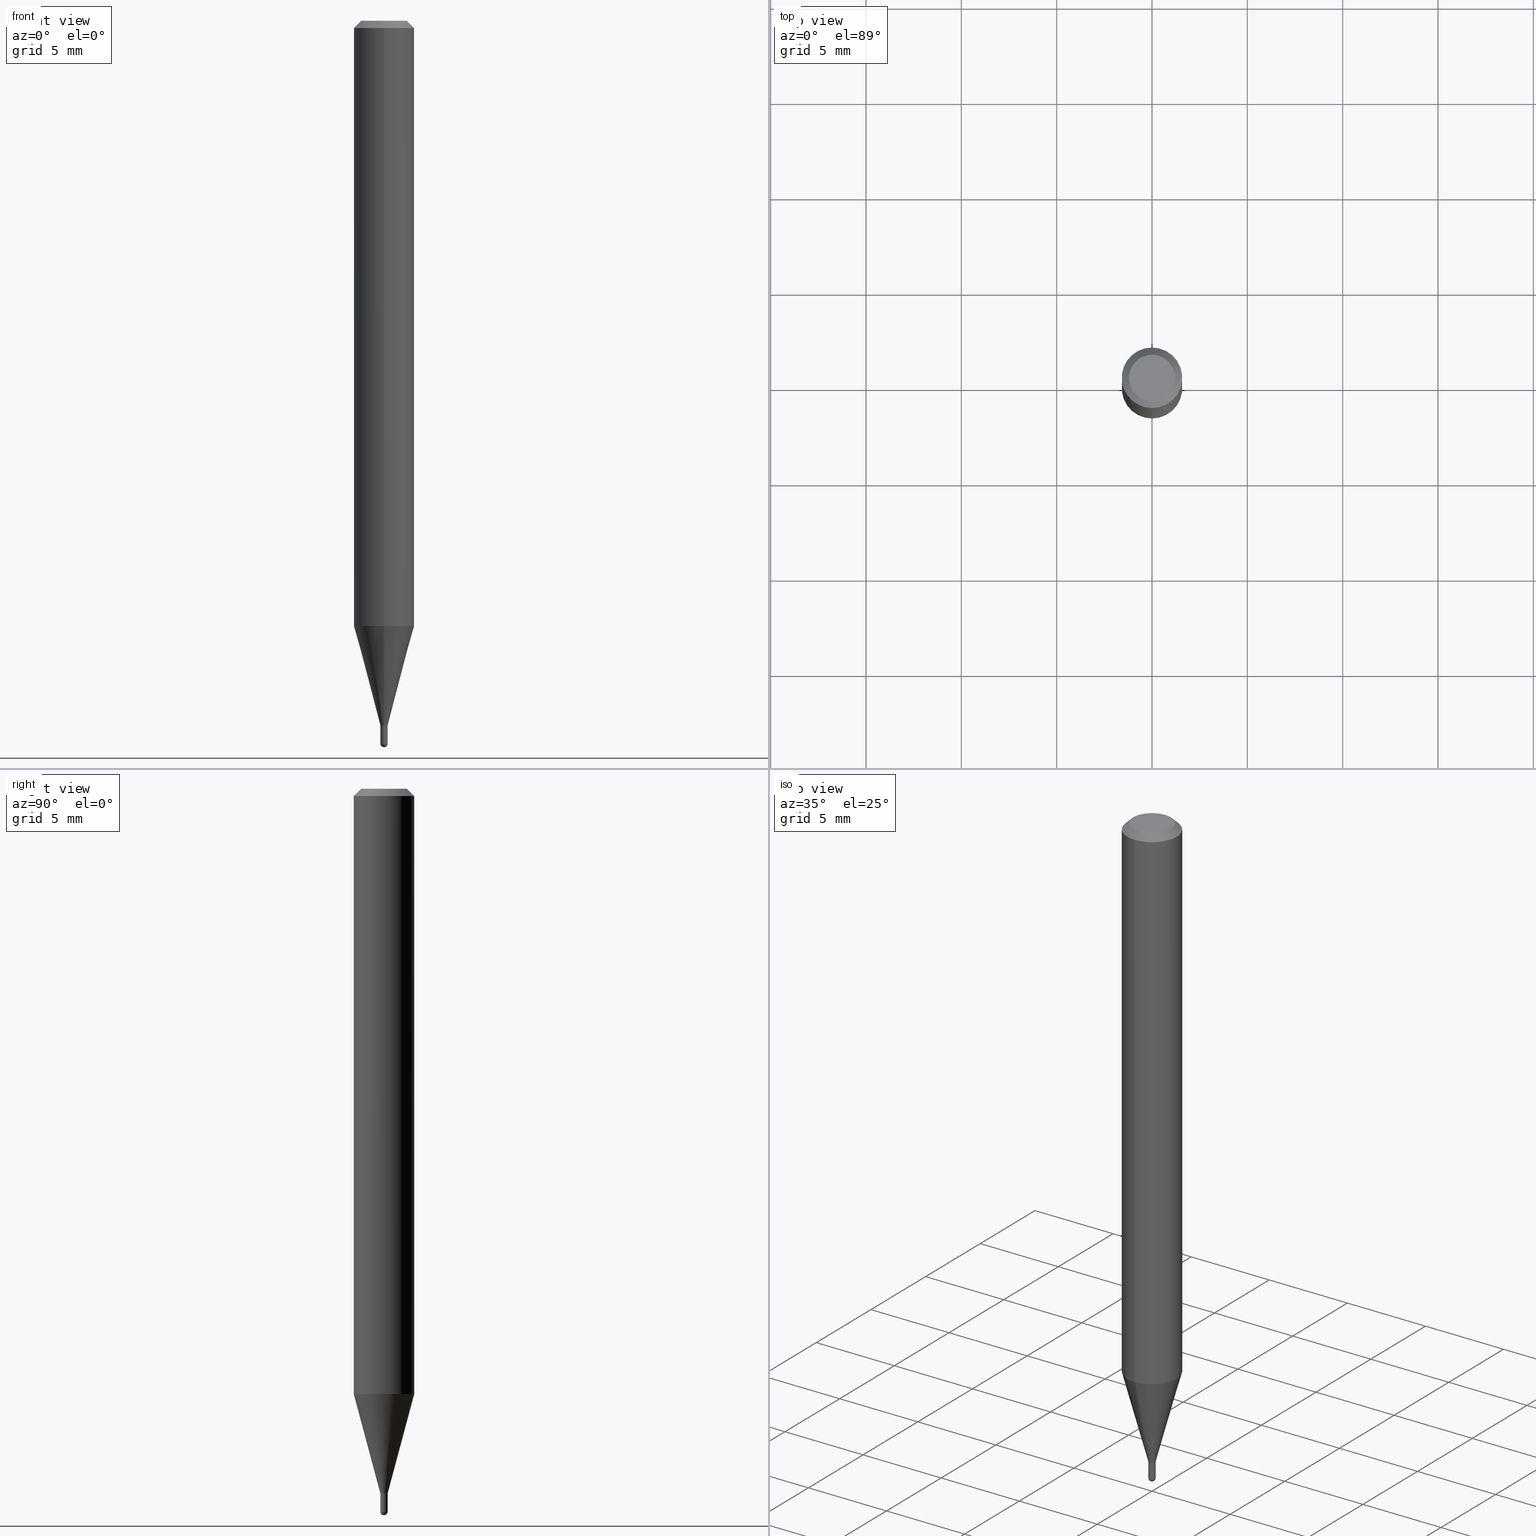
[diagram: canonical four-view strip — front | top / right | iso, engineering-drawing reading convention]
A machine part, canonical four-view strip (front | top / right | iso — engineering-drawing reading convention). The complete STEP part file that produces these views, byte-faithful:
ISO-10303-21;
HEADER;
FILE_DESCRIPTION (( 'STEP AP203' ),
    '1' );
FILE_NAME ('01438.STEP',
    '2024-03-07T20:52:54',
    ( '' ),
    ( '' ),
    'SwSTEP 2.0',
    'SolidWorks 2023',
    '' );
FILE_SCHEMA (( 'CONFIG_CONTROL_DESIGN' ));
ENDSEC;

DATA;
#1 = ADVANCED_FACE ( 'NONE', ( #479 ), #376, .T. ) ;
#2 = COORDINATED_UNIVERSAL_TIME_OFFSET ( 5, 0, .BEHIND. ) ;
#3 = PERSON_AND_ORGANIZATION ( #362, #62 ) ;
#4 = AXIS2_PLACEMENT_3D ( 'NONE', #68, #512, #146 ) ;
#5 = DIRECTION ( 'NONE',  ( 1.000000000000000000, -6.982962677686268288E-15, 0.000000000000000000 ) ) ;
#6 = ORIENTED_EDGE ( 'NONE', *, *, #439, .F. ) ;
#7 = PRODUCT ( '01438', '01438', '', ( #383 ) ) ;
#8 = ADVANCED_FACE ( 'NONE', ( #426 ), #38, .T. ) ;
#9 = APPLICATION_CONTEXT ( 'configuration controlled 3d designs of mechanical parts and assemblies' ) ;
#10 = LINE ( 'NONE', #262, #340 ) ;
#11 = DIRECTION ( 'NONE',  ( -4.851104656540964275E-15, -0.7071067811865500152, -0.7071067811865450192 ) ) ;
#12 = PLANE ( 'NONE',  #369 ) ;
#13 = DIRECTION ( 'NONE',  ( 2.445455298857690546E-29, -3.491500682104837791E-15, -1.000000000000000000 ) ) ;
#14 = LOCAL_TIME ( 15, 52, 54.00000000000000000, #428 ) ;
#15 = EDGE_LOOP ( 'NONE', ( #131, #122 ) ) ;
#16 = ADVANCED_FACE ( 'NONE', ( #112 ), #216, .T. ) ;
#17 = DIRECTION ( 'NONE',  ( 6.982962677686265922E-15, 1.000000000000000000, -3.483106191921935554E-15 ) ) ;
#18 = CARTESIAN_POINT ( 'NONE',  ( -5.237222008261278225E-17, -0.007500000000005276751, -1.455000000000000293 ) ) ;
#19 = CARTESIAN_POINT ( 'NONE',  ( 3.668182948286538113E-31, -5.237251023157260138E-17, -0.01500000000000000812 ) ) ;
#20 = DIRECTION ( 'NONE',  ( -6.982962677686265922E-15, -1.000000000000000000, 0.000000000000000000 ) ) ;
#21 = AXIS2_PLACEMENT_3D ( 'NONE', #413, #292, #317 ) ;
#22 = CONICAL_SURFACE ( 'NONE', #86, 0.006999999999999999278, 0.7853981633974739252 ) ;
#23 = EDGE_CURVE ( 'NONE', #172, #339, #61, .T. ) ;
#24 = CARTESIAN_POINT ( 'NONE',  ( 3.649220818514431555E-29, -5.211954383322755316E-15, -1.492499999999999938 ) ) ;
#25 = CARTESIAN_POINT ( 'NONE',  ( 4.364351673553919652E-16, 0.06249999999999995143, -0.01500000000000022669 ) ) ;
#26 = CARTESIAN_POINT ( 'NONE',  ( -5.237222008261106278E-17, -0.007500000000005026951, -1.454500000000000348 ) ) ;
#27 = EDGE_LOOP ( 'NONE', ( #138, #159, #464, #209 ) ) ;
#28 = LENGTH_MEASURE_WITH_UNIT ( LENGTH_MEASURE( 0.02539999999999999897 ), #450 );
#29 = ORIENTED_EDGE ( 'NONE', *, *, #143, .T. ) ;
#30 = EDGE_CURVE ( 'NONE', #158, #270, #303, .T. ) ;
#31 = CARTESIAN_POINT ( 'NONE',  ( -4.888073874376827751E-17, -0.007000000000005080283, -1.455000000000000293 ) ) ;
#32 = LOCAL_TIME ( 15, 52, 54.00000000000000000, #215 ) ;
#33 = VERTEX_POINT ( 'NONE', #217 ) ;
#34 = CARTESIAN_POINT ( 'NONE',  ( 3.558157112999374623E-29, -5.080105348016777334E-15, -1.455000000000000293 ) ) ;
#35 = CALENDAR_DATE ( 2024, 7, 3 ) ;
#36 = APPROVAL_ROLE ( '' ) ;
#37 = VERTEX_POINT ( 'NONE', #220 ) ;
#38 = CYLINDRICAL_SURFACE ( 'NONE', #242, 0.007500000000000001457 ) ;
#39 = CALENDAR_DATE ( 2024, 7, 3 ) ;
#40 = VECTOR ( 'NONE', #11, 39.37007874015748143 ) ;
#41 = AXIS2_PLACEMENT_3D ( 'NONE', #368, #289, #141 ) ;
#42 = EDGE_CURVE ( 'NONE', #152, #33, #384, .T. ) ;
#43 = APPROVAL_STATUS ( 'not_yet_approved' ) ;
#44 = APPROVAL_STATUS ( 'not_yet_approved' ) ;
#45 = DIRECTION ( 'NONE',  ( -2.445468806185136597E-29, 3.491481338843145583E-15, 1.000000000000000000 ) ) ;
#46 = EDGE_CURVE ( 'NONE', #414, #367, #320, .T. ) ;
#47 = VECTOR ( 'NONE', #416, 39.37007874015748143 ) ;
#48 = CIRCLE ( 'NONE', #41, 0.04749999999999999362 ) ;
#49 = DIRECTION ( 'NONE',  ( 2.438088387897960049E-29, -3.491481338843145188E-15, -1.000000000000000000 ) ) ;
#50 = FACE_OUTER_BOUND ( 'NONE', #184, .T. ) ;
#51 = EDGE_LOOP ( 'NONE', ( #136, #322, #324, #385 ) ) ;
#52 = CARTESIAN_POINT ( 'NONE',  ( 3.668182948286538113E-31, -5.237251023157260138E-17, -0.01500000000000000812 ) ) ;
#53 = CIRCLE ( 'NONE', #357, 0.04749999999999999362 ) ;
#54 = APPROVAL ( #44, 'UNSPECIFIED' ) ;
#55 = CONICAL_SURFACE ( 'NONE', #243, 0.007500000000000196614, 0.2617993877991574014 ) ;
#56 = CARTESIAN_POINT ( 'NONE',  ( 3.316907271900976096E-16, 0.04749999999999999362, -1.702759827934301371E-16 ) ) ;
#57 = ORIENTED_EDGE ( 'NONE', *, *, #381, .F. ) ;
#58 = CARTESIAN_POINT ( 'NONE',  ( 3.556914732188511046E-29, -5.078387742121487266E-15, -1.454500000000000348 ) ) ;
#59 = EDGE_CURVE ( 'NONE', #90, #414, #448, .T. ) ;
#60 = CYLINDRICAL_SURFACE ( 'NONE', #467, 0.007500000000000060438 ) ;
#61 = CIRCLE ( 'NONE', #332, 0.007500000000000001457 ) ;
#62 = ORGANIZATION ( 'UNSPECIFIED', 'UNSPECIFIED', '' ) ;
#63 = ORIENTED_EDGE ( 'NONE', *, *, #449, .F. ) ;
#64 = CARTESIAN_POINT ( 'NONE',  ( 3.558137459837940521E-29, -5.080133492462539105E-15, -1.455000000000000293 ) ) ;
#65 =( CONVERSION_BASED_UNIT ( 'INCH', #28 ) LENGTH_UNIT ( ) NAMED_UNIT ( #470 ) );
#66 = CARTESIAN_POINT ( 'NONE',  ( 3.558137459837940521E-29, -5.080133492462539105E-15, -1.455000000000000293 ) ) ;
#67 = ADVANCED_FACE ( 'NONE', ( #393 ), #386, .T. ) ;
#68 = CARTESIAN_POINT ( 'NONE',  ( 3.649220818514431555E-29, -5.211954383322755316E-15, -1.492499999999999938 ) ) ;
#69 = EDGE_LOOP ( 'NONE', ( #29, #471, #375, #57 ) ) ;
#70 = VERTEX_POINT ( 'NONE', #26 ) ;
#71 = CC_DESIGN_DATE_AND_TIME_ASSIGNMENT ( #115, #82, ( #109 ) ) ;
#72 = AXIS2_PLACEMENT_3D ( 'NONE', #19, #13, #279 ) ;
#73 = APPROVAL_PERSON_ORGANIZATION ( #84, #351, #175 ) ;
#74 = EDGE_LOOP ( 'NONE', ( #228, #298, #493, #188 ) ) ;
#75 = CARTESIAN_POINT ( 'NONE',  ( 0.000000000000000000, 0.000000000000000000, 0.000000000000000000 ) ) ;
#76 = DATE_AND_TIME ( #35, #137 ) ;
#77 = EDGE_CURVE ( 'NONE', #309, #152, #457, .T. ) ;
#78 = SHAPE_DEFINITION_REPRESENTATION ( #511, #190 ) ;
#79 = CIRCLE ( 'NONE', #466, 0.06250000000000000000 ) ;
#80 = AXIS2_PLACEMENT_3D ( 'NONE', #398, #123, #153 ) ;
#81 = DIRECTION ( 'NONE',  ( -6.982962677686265922E-15, -1.000000000000000000, 3.483106191921935554E-15 ) ) ;
#82 = DATE_TIME_ROLE ( 'creation_date' ) ;
#83 = EDGE_CURVE ( 'NONE', #367, #163, #95, .T. ) ;
#84 = PERSON_AND_ORGANIZATION ( #362, #62 ) ;
#85 = CARTESIAN_POINT ( 'NONE',  ( 3.558157112999374623E-29, -5.080105348016777334E-15, -1.455000000000000293 ) ) ;
#86 = AXIS2_PLACEMENT_3D ( 'NONE', #232, #480, #121 ) ;
#87 = PRODUCT_DEFINITION_FORMATION_WITH_SPECIFIED_SOURCE ( 'ANY', '', #7, .NOT_KNOWN. ) ;
#88 = DIRECTION ( 'NONE',  ( 1.000000000000000000, -6.982962677686266711E-15, 4.876176775795935793E-29 ) ) ;
#89 = DIRECTION ( 'NONE',  ( 1.000000000000000000, -6.982962677686266711E-15, 4.876176775795935793E-29 ) ) ;
#90 = VERTEX_POINT ( 'NONE', #472 ) ;
#91 = CARTESIAN_POINT ( 'NONE',  ( 3.558137459837940521E-29, -5.080133492462539105E-15, -1.455000000000000293 ) ) ;
#92 = CARTESIAN_POINT ( 'NONE',  ( 2.166526859903036490E-46, -3.093260389050401256E-32, -8.859400786900723789E-18 ) ) ;
#93 = PLANE ( 'NONE',  #231 ) ;
#94 = CIRCLE ( 'NONE', #144, 0.006999999999999999278 ) ;
#95 = LINE ( 'NONE', #395, #214 ) ;
#96 = LOCAL_TIME ( 15, 52, 54.00000000000000000, #147 ) ;
#97 = DIRECTION ( 'NONE',  ( 2.445455298857690266E-29, -3.491500682104837791E-15, -1.000000000000000000 ) ) ;
#98 = EDGE_CURVE ( 'NONE', #339, #452, #260, .T. ) ;
#99 =( NAMED_UNIT ( * ) PLANE_ANGLE_UNIT ( ) SI_UNIT ( $, .RADIAN. ) );
#100 = DIRECTION ( 'NONE',  ( -2.445455298857690546E-29, 3.491500682104837791E-15, 1.000000000000000000 ) ) ;
#101 = VERTEX_POINT ( 'NONE', #221 ) ;
#102 = DIRECTION ( 'NONE',  ( 1.000000000000000000, -7.105427357601001070E-15, 4.926315508542082329E-29 ) ) ;
#103 = VERTEX_POINT ( 'NONE', #210 ) ;
#104 = DIRECTION ( 'NONE',  ( -2.445468806185136597E-29, 3.491481338843145583E-15, 1.000000000000000000 ) ) ;
#105 = CC_DESIGN_PERSON_AND_ORGANIZATION_ASSIGNMENT ( #421, #507, ( #109 ) ) ;
#106 = ORIENTED_EDGE ( 'NONE', *, *, #259, .F. ) ;
#107 = DIRECTION ( 'NONE',  ( -6.982962677686265922E-15, -1.000000000000000000, 3.491500682104838186E-15 ) ) ;
#108 = SECURITY_CLASSIFICATION_LEVEL ( 'unclassified' ) ;
#109 = PRODUCT_DEFINITION ( 'UNKNOWN', '', #87, #458 ) ;
#110 = CALENDAR_DATE ( 2024, 7, 3 ) ;
#111 = PERSON_AND_ORGANIZATION ( #362, #62 ) ;
#112 = FACE_OUTER_BOUND ( 'NONE', #394, .T. ) ;
#113 = APPROVAL_ROLE ( '' ) ;
#114 = CC_DESIGN_APPROVAL ( #54, ( #109 ) ) ;
#115 = DATE_AND_TIME ( #110, #14 ) ;
#116 = FACE_OUTER_BOUND ( 'NONE', #284, .T. ) ;
#117 = FACE_OUTER_BOUND ( 'NONE', #345, .T. ) ;
#118 = AXIS2_PLACEMENT_3D ( 'NONE', #24, #102, #134 ) ;
#119 = EDGE_CURVE ( 'NONE', #452, #163, #224, .T. ) ;
#120 = FACE_OUTER_BOUND ( 'NONE', #69, .T. ) ;
#121 = DIRECTION ( 'NONE',  ( -6.982962677686266711E-15, -1.000000000000000000, 0.000000000000000000 ) ) ;
#122 = ORIENTED_EDGE ( 'NONE', *, *, #119, .T. ) ;
#123 = DIRECTION ( 'NONE',  ( -2.445455298857690546E-29, 3.491500682104837791E-15, 1.000000000000000000 ) ) ;
#124 = DIRECTION ( 'NONE',  ( -6.982962677686265922E-15, -1.000000000000000000, 0.000000000000000000 ) ) ;
#125 = ORIENTED_EDGE ( 'NONE', *, *, #347, .T. ) ;
#126 = DIRECTION ( 'NONE',  ( -2.445455298857690546E-29, 3.491500682104837791E-15, 1.000000000000000000 ) ) ;
#127 = EDGE_CURVE ( 'NONE', #33, #158, #10, .T. ) ;
#128 = CLOSED_SHELL ( 'NONE', ( #419, #1, #67, #240, #182, #412, #170, #325, #253, #338, #139, #482 ) ) ;
#129 = AXIS2_PLACEMENT_3D ( 'NONE', #75, #331, #305 ) ;
#130 = CARTESIAN_POINT ( 'NONE',  ( 3.649220818514431555E-29, -5.211954383322755316E-15, -1.492499999999999938 ) ) ;
#131 = ORIENTED_EDGE ( 'NONE', *, *, #280, .T. ) ;
#132 = ORIENTED_EDGE ( 'NONE', *, *, #433, .T. ) ;
#133 = LINE ( 'NONE', #31, #510 ) ;
#134 = DIRECTION ( 'NONE',  ( 7.105427357601001070E-15, 1.000000000000000000, 0.000000000000000000 ) ) ;
#135 = AXIS2_PLACEMENT_3D ( 'NONE', #85, #318, #264 ) ;
#136 = ORIENTED_EDGE ( 'NONE', *, *, #77, .T. ) ;
#137 = LOCAL_TIME ( 15, 52, 54.00000000000000000, #222 ) ;
#138 = ORIENTED_EDGE ( 'NONE', *, *, #127, .F. ) ;
#139 = ADVANCED_FACE ( 'NONE', ( #326 ), #22, .T. ) ;
#140 = DIRECTION ( 'NONE',  ( -4.937700262164674260E-15, -0.7071067811865632269, 0.7071067811865319186 ) ) ;
#141 = DIRECTION ( 'NONE',  ( -6.982962677686266711E-15, -1.000000000000000000, 3.491500682104838580E-15 ) ) ;
#142 = ORIENTED_EDGE ( 'NONE', *, *, #494, .T. ) ;
#143 = EDGE_CURVE ( 'NONE', #319, #33, #79, .T. ) ;
#144 = AXIS2_PLACEMENT_3D ( 'NONE', #265, #346, #436 ) ;
#145 = ORIENTED_EDGE ( 'NONE', *, *, #474, .T. ) ;
#146 = DIRECTION ( 'NONE',  ( -6.982962677686265922E-15, -1.000000000000000000, 0.000000000000000000 ) ) ;
#147 = COORDINATED_UNIVERSAL_TIME_OFFSET ( 5, 0, .BEHIND. ) ;
#148 = APPROVAL_DATE_TIME ( #380, #54 ) ;
#149 = AXIS2_PLACEMENT_3D ( 'NONE', #392, #162, #275 ) ;
#150 = FACE_OUTER_BOUND ( 'NONE', #51, .T. ) ;
#151 = DIRECTION ( 'NONE',  ( -2.445468806185136877E-29, 3.491481338843145188E-15, 1.000000000000000000 ) ) ;
#152 = VERTEX_POINT ( 'NONE', #239 ) ;
#153 = DIRECTION ( 'NONE',  ( -6.982962677686265922E-15, -1.000000000000000000, 3.483106191921935554E-15 ) ) ;
#154 = EDGE_CURVE ( 'NONE', #101, #37, #53, .T. ) ;
#155 = MANIFOLD_SOLID_BREP ( 'Body-Move/Copy2[2]', #128 ) ;
#156 = DIRECTION ( 'NONE',  ( -6.982962677686265922E-15, -1.000000000000000000, 0.000000000000000000 ) ) ;
#157 = CIRCLE ( 'NONE', #173, 0.007499999999999924262 ) ;
#158 = VERTEX_POINT ( 'NONE', #463 ) ;
#159 = ORIENTED_EDGE ( 'NONE', *, *, #397, .T. ) ;
#160 = CARTESIAN_POINT ( 'NONE',  ( 3.558137459837940521E-29, -5.080133492462539105E-15, -1.455000000000000293 ) ) ;
#161 = EDGE_CURVE ( 'NONE', #506, #103, #94, .T. ) ;
#162 = DIRECTION ( 'NONE',  ( -2.445455298857690546E-29, 3.491500682104837791E-15, 1.000000000000000000 ) ) ;
#163 = VERTEX_POINT ( 'NONE', #411 ) ;
#164 = DIRECTION ( 'NONE',  ( -2.445455298857690546E-29, 3.491500682104837791E-15, 1.000000000000000000 ) ) ;
#165 = ORIENTED_EDGE ( 'NONE', *, *, #46, .F. ) ;
#166 = AXIS2_PLACEMENT_3D ( 'NONE', #130, #171, #489 ) ;
#167 =( NAMED_UNIT ( * ) SI_UNIT ( $, .STERADIAN. ) SOLID_ANGLE_UNIT ( ) );
#168 = EDGE_LOOP ( 'NONE', ( #418, #389, #460, #236 ) ) ;
#169 = DIRECTION ( 'NONE',  ( 4.937700262164548042E-15, 0.7071067811865451302, -0.7071067811865499042 ) ) ;
#170 = ADVANCED_FACE ( 'NONE', ( #354 ), #486, .T. ) ;
#171 = DIRECTION ( 'NONE',  ( 1.000000000000000000, -6.982962677686265922E-15, 4.883557194083112901E-29 ) ) ;
#172 = VERTEX_POINT ( 'NONE', #441 ) ;
#173 = AXIS2_PLACEMENT_3D ( 'NONE', #356, #388, #20 ) ;
#174 = ORIENTED_EDGE ( 'NONE', *, *, #259, .T. ) ;
#175 = APPROVAL_ROLE ( '' ) ;
#176 = EDGE_CURVE ( 'NONE', #90, #172, #348, .T. ) ;
#177 = VECTOR ( 'NONE', #497, 39.37007874015748143 ) ;
#178 = ORIENTED_EDGE ( 'NONE', *, *, #176, .F. ) ;
#179 = AXIS2_PLACEMENT_3D ( 'NONE', #415, #104, #455 ) ;
#180 = PERSON_AND_ORGANIZATION ( #362, #62 ) ;
#181 = DIRECTION ( 'NONE',  ( -6.982962677686266711E-15, -1.000000000000000000, 3.491500682104838580E-15 ) ) ;
#182 = ADVANCED_FACE ( 'NONE', ( #150 ), #508, .T. ) ;
#183 = APPLICATION_PROTOCOL_DEFINITION ( 'international standard', 'config_control_design', 1994, #9 ) ;
#184 = EDGE_LOOP ( 'NONE', ( #223, #504 ) ) ;
#185 = AXIS2_PLACEMENT_3D ( 'NONE', #252, #429, #81 ) ;
#186 = AXIS2_PLACEMENT_3D ( 'NONE', #478, #267, #248 ) ;
#187 = CARTESIAN_POINT ( 'NONE',  ( 5.329070518200793721E-17, 0.007500000000000060438, -2.618625511578649791E-17 ) ) ;
#188 = ORIENTED_EDGE ( 'NONE', *, *, #333, .T. ) ;
#189 = CC_DESIGN_PERSON_AND_ORGANIZATION_ASSIGNMENT ( #111, #299, ( #7 ) ) ;
#190 = ADVANCED_BREP_SHAPE_REPRESENTATION ( '01438', ( #509, #155, #129 ), #263 ) ;
#191 = DIRECTION ( 'NONE',  ( -2.445468806185136597E-29, 3.491481338843145583E-15, 1.000000000000000000 ) ) ;
#192 = DIRECTION ( 'NONE',  ( -6.982962677686265922E-15, -1.000000000000000000, 3.491500682104837791E-15 ) ) ;
#193 = LINE ( 'NONE', #344, #501 ) ;
#194 = ORIENTED_EDGE ( 'NONE', *, *, #218, .F. ) ;
#195 = DIRECTION ( 'NONE',  ( 2.445455298857690546E-29, -3.491500682104837791E-15, -1.000000000000000000 ) ) ;
#196 = AXIS2_PLACEMENT_3D ( 'NONE', #66, #206, #124 ) ;
#197 = EDGE_CURVE ( 'NONE', #506, #485, #379, .T. ) ;
#198 = ORIENTED_EDGE ( 'NONE', *, *, #503, .T. ) ;
#199 = CYLINDRICAL_SURFACE ( 'NONE', #327, 0.06250000000000000000 ) ;
#200 = CARTESIAN_POINT ( 'NONE',  ( 3.056176471574309207E-29, -4.363458305747349090E-15, -1.249737205583719257 ) ) ;
#201 = CARTESIAN_POINT ( 'NONE',  ( 5.237222008268257796E-17, 0.007499999999994919585, -1.455000000000000293 ) ) ;
#202 = ORIENTED_EDGE ( 'NONE', *, *, #23, .T. ) ;
#203 = CARTESIAN_POINT ( 'NONE',  ( 0.000000000000000000, 0.000000000000000000, 0.000000000000000000 ) ) ;
#204 = AXIS2_PLACEMENT_3D ( 'NONE', #237, #363, #192 ) ;
#205 = CIRCLE ( 'NONE', #186, 0.06250000000000000000 ) ;
#206 = DIRECTION ( 'NONE',  ( -2.445455298857690546E-29, 3.491500682104837791E-15, 1.000000000000000000 ) ) ;
#207 = LINE ( 'NONE', #402, #477 ) ;
#208 = ORIENTED_EDGE ( 'NONE', *, *, #290, .F. ) ;
#209 = ORIENTED_EDGE ( 'NONE', *, *, #30, .F. ) ;
#210 = CARTESIAN_POINT ( 'NONE',  ( -4.888073874376827751E-17, -0.007000000000005080283, -1.455000000000000293 ) ) ;
#211 = DIRECTION ( 'NONE',  ( -2.445468806185136597E-29, 3.491481338843145583E-15, 1.000000000000000000 ) ) ;
#212 = DIRECTION ( 'NONE',  ( -2.445468806185136597E-29, 3.491481338843145583E-15, 1.000000000000000000 ) ) ;
#213 = ORIENTED_EDGE ( 'NONE', *, *, #355, .T. ) ;
#214 = VECTOR ( 'NONE', #151, 39.37007874015748143 ) ;
#215 = COORDINATED_UNIVERSAL_TIME_OFFSET ( 5, 0, .BEHIND. ) ;
#216 = SPHERICAL_SURFACE ( 'NONE', #4, 0.007500000000000199216 ) ;
#217 = CARTESIAN_POINT ( 'NONE',  ( 4.440892098500929873E-16, 0.06249999999999562850, -1.249737205583719479 ) ) ;
#218 = EDGE_CURVE ( 'NONE', #101, #270, #505, .T. ) ;
#219 = PERSON_AND_ORGANIZATION_ROLE ( 'creator' ) ;
#220 = CARTESIAN_POINT ( 'NONE',  ( 3.840629472727447874E-16, 0.04749999999999999362, -1.747056831868805383E-16 ) ) ;
#221 = CARTESIAN_POINT ( 'NONE',  ( -3.773273898774340269E-16, -0.04749999999999999362, 1.569868816130790568E-16 ) ) ;
#222 = COORDINATED_UNIVERSAL_TIME_OFFSET ( 5, 0, .BEHIND. ) ;
#223 = ORIENTED_EDGE ( 'NONE', *, *, #321, .F. ) ;
#224 = CIRCLE ( 'NONE', #254, 0.007499999999999999722 ) ;
#225 = SECURITY_CLASSIFICATION ( '', '', #108 ) ;
#226 = DIRECTION ( 'NONE',  ( -6.982962677686265922E-15, -1.000000000000000000, 3.491500682104837791E-15 ) ) ;
#227 = CARTESIAN_POINT ( 'NONE',  ( 0.007500000000000001457, -5.197942843202733163E-15, -1.492499999999999938 ) ) ;
#228 = ORIENTED_EDGE ( 'NONE', *, *, #347, .F. ) ;
#229 = FACE_OUTER_BOUND ( 'NONE', #498, .T. ) ;
#230 = CARTESIAN_POINT ( 'NONE',  ( -4.364351673553611504E-16, -0.06250000000000435763, -1.249737205583719035 ) ) ;
#231 = AXIS2_PLACEMENT_3D ( 'NONE', #201, #49, #310 ) ;
#232 = CARTESIAN_POINT ( 'NONE',  ( 3.558137459837940521E-29, -5.080133492462539105E-15, -1.455000000000000293 ) ) ;
#233 = AXIS2_PLACEMENT_3D ( 'NONE', #52, #195, #17 ) ;
#234 = ORIENTED_EDGE ( 'NONE', *, *, #321, .T. ) ;
#235 = CARTESIAN_POINT ( 'NONE',  ( -0.007500000000000001457, -5.092279917938078523E-15, -1.492499999999999938 ) ) ;
#236 = ORIENTED_EDGE ( 'NONE', *, *, #374, .F. ) ;
#237 = CARTESIAN_POINT ( 'NONE',  ( 0.000000000000000000, 0.000000000000000000, 0.000000000000000000 ) ) ;
#238 = DIRECTION ( 'NONE',  ( -2.445455298857690546E-29, 3.491500682104837791E-15, 1.000000000000000000 ) ) ;
#239 = CARTESIAN_POINT ( 'NONE',  ( 2.486899575160690097E-16, 0.007499999999995116476, -1.455000000000000293 ) ) ;
#240 = ADVANCED_FACE ( 'NONE', ( #120 ), #199, .T. ) ;
#241 = DIRECTION ( 'NONE',  ( -6.982962677686265922E-15, -1.000000000000000000, 0.000000000000000000 ) ) ;
#242 = AXIS2_PLACEMENT_3D ( 'NONE', #268, #212, #88 ) ;
#243 = AXIS2_PLACEMENT_3D ( 'NONE', #64, #100, #241 ) ;
#244 = DIRECTION ( 'NONE',  ( -2.445455298857690546E-29, 3.491500682104837791E-15, 1.000000000000000000 ) ) ;
#245 = ORIENTED_EDGE ( 'NONE', *, *, #46, .T. ) ;
#246 = CARTESIAN_POINT ( 'NONE',  ( -5.237222008261119837E-17, -0.007500000000005311446, -1.492499999999999938 ) ) ;
#247 = CC_DESIGN_PERSON_AND_ORGANIZATION_ASSIGNMENT ( #180, #373, ( #225 ) ) ;
#248 = DIRECTION ( 'NONE',  ( -6.982962677686265922E-15, -1.000000000000000000, 4.370956789862821150E-15 ) ) ;
#249 = ORIENTED_EDGE ( 'NONE', *, *, #333, .F. ) ;
#250 = AXIS2_PLACEMENT_3D ( 'NONE', #273, #343, #438 ) ;
#251 = APPROVAL_DATE_TIME ( #300, #401 ) ;
#252 = CARTESIAN_POINT ( 'NONE',  ( 3.668182948286538113E-31, -5.237251023157260138E-17, -0.01500000000000000812 ) ) ;
#253 = ADVANCED_FACE ( 'NONE', ( #117 ), #12, .F. ) ;
#254 = AXIS2_PLACEMENT_3D ( 'NONE', #34, #45, #5 ) ;
#255 = PERSON_AND_ORGANIZATION ( #362, #62 ) ;
#256 = DIRECTION ( 'NONE',  ( -2.445468806185136877E-29, 3.491481338843145188E-15, 1.000000000000000000 ) ) ;
#257 = PERSON_AND_ORGANIZATION_ROLE ( 'design_supplier' ) ;
#258 = CARTESIAN_POINT ( 'NONE',  ( 5.329070518204448366E-17, 0.007499999999995115608, -1.455000000000000293 ) ) ;
#259 = EDGE_CURVE ( 'NONE', #152, #309, #406, .T. ) ;
#260 = LINE ( 'NONE', #427, #499 ) ;
#261 = DIRECTION ( 'NONE',  ( -2.445455298857690826E-29, 3.491500682104837791E-15, 1.000000000000000000 ) ) ;
#262 = CARTESIAN_POINT ( 'NONE',  ( 4.440892098500625669E-16, 0.06250000000000000000, -2.182187926315523620E-16 ) ) ;
#263 =( GEOMETRIC_REPRESENTATION_CONTEXT ( 3 ) GLOBAL_UNCERTAINTY_ASSIGNED_CONTEXT ( ( #294 ) ) GLOBAL_UNIT_ASSIGNED_CONTEXT ( ( #65, #99, #167 ) ) REPRESENTATION_CONTEXT ( 'NONE', 'WORKASPACE' ) );
#264 = DIRECTION ( 'NONE',  ( 1.000000000000000000, -6.982962677686268288E-15, 0.000000000000000000 ) ) ;
#265 = CARTESIAN_POINT ( 'NONE',  ( 3.558137459837940521E-29, -5.080133492462539105E-15, -1.455000000000000293 ) ) ;
#266 = ORIENTED_EDGE ( 'NONE', *, *, #154, .F. ) ;
#267 = DIRECTION ( 'NONE',  ( -2.445455298857690546E-29, 3.491500682104837791E-15, 1.000000000000000000 ) ) ;
#268 = CARTESIAN_POINT ( 'NONE',  ( 0.000000000000000000, 0.000000000000000000, 0.000000000000000000 ) ) ;
#269 = ORIENTED_EDGE ( 'NONE', *, *, #280, .F. ) ;
#270 = VERTEX_POINT ( 'NONE', #271 ) ;
#271 = CARTESIAN_POINT ( 'NONE',  ( -4.364351673553912750E-16, -0.06250000000000005551, -0.01499999999999979128 ) ) ;
#272 = PRODUCT_RELATED_PRODUCT_CATEGORY ( 'detail', '', ( #7 ) ) ;
#273 = CARTESIAN_POINT ( 'NONE',  ( 3.649220818514431555E-29, -5.211954383322755316E-15, -1.492499999999999938 ) ) ;
#274 = ORIENTED_EDGE ( 'NONE', *, *, #439, .T. ) ;
#275 = DIRECTION ( 'NONE',  ( -6.982962677686266711E-15, -1.000000000000000000, 0.000000000000000000 ) ) ;
#276 = APPROVAL_PERSON_ORGANIZATION ( #3, #54, #36 ) ;
#277 = CYLINDRICAL_SURFACE ( 'NONE', #432, 0.007500000000000060438 ) ;
#278 = DIRECTION ( 'NONE',  ( -6.982962677686265922E-15, -1.000000000000000000, 4.370956789862821150E-15 ) ) ;
#279 = DIRECTION ( 'NONE',  ( 6.982962677686265922E-15, 1.000000000000000000, -3.483106191921935554E-15 ) ) ;
#280 = EDGE_CURVE ( 'NONE', #163, #452, #286, .T. ) ;
#281 = CARTESIAN_POINT ( 'NONE',  ( 0.000000000000000000, 0.000000000000000000, 0.000000000000000000 ) ) ;
#282 = DIRECTION ( 'NONE',  ( -2.445455298857690546E-29, 3.491500682104837791E-15, 1.000000000000000000 ) ) ;
#283 = ORIENTED_EDGE ( 'NONE', *, *, #197, .T. ) ;
#284 = EDGE_LOOP ( 'NONE', ( #194, #6, #142, #353 ) ) ;
#285 = CARTESIAN_POINT ( 'NONE',  ( 5.151434834264256145E-17, 0.006999999999994919141, -1.455000000000000293 ) ) ;
#286 = CIRCLE ( 'NONE', #135, 0.007499999999999999722 ) ;
#287 = VECTOR ( 'NONE', #342, 39.37007874015748143 ) ;
#288 = ORIENTED_EDGE ( 'NONE', *, *, #83, .F. ) ;
#289 = DIRECTION ( 'NONE',  ( -2.445455298857690546E-29, 3.491500682104837791E-15, 1.000000000000000000 ) ) ;
#290 = EDGE_CURVE ( 'NONE', #309, #70, #307, .T. ) ;
#291 = DIRECTION ( 'NONE',  ( -1.807323732225378260E-15, -0.2588190451025250693, 0.9659258262890670910 ) ) ;
#292 = DIRECTION ( 'NONE',  ( -2.445468806185136597E-29, 3.491481338843145583E-15, 1.000000000000000000 ) ) ;
#293 = ORIENTED_EDGE ( 'NONE', *, *, #176, .T. ) ;
#294 = UNCERTAINTY_MEASURE_WITH_UNIT (LENGTH_MEASURE( 1.000000000000000082E-05 ), #65, 'distance_accuracy_value', 'NONE');
#295 = PERSON_AND_ORGANIZATION ( #362, #62 ) ;
#296 = AXIS2_PLACEMENT_3D ( 'NONE', #410, #244, #365 ) ;
#297 = LOCAL_TIME ( 15, 52, 54.00000000000000000, #2 ) ;
#298 = ORIENTED_EDGE ( 'NONE', *, *, #77, .F. ) ;
#299 = PERSON_AND_ORGANIZATION_ROLE ( 'design_owner' ) ;
#300 = DATE_AND_TIME ( #469, #32 ) ;
#301 = ORIENTED_EDGE ( 'NONE', *, *, #42, .F. ) ;
#302 = CC_DESIGN_PERSON_AND_ORGANIZATION_ASSIGNMENT ( #295, #219, ( #87 ) ) ;
#303 = CIRCLE ( 'NONE', #185, 0.06250000000000000000 ) ;
#304 = CC_DESIGN_APPROVAL ( #401, ( #87 ) ) ;
#305 = DIRECTION ( 'NONE',  ( 1.000000000000000000, 0.000000000000000000, 0.000000000000000000 ) ) ;
#306 = ADVANCED_FACE ( 'NONE', ( #387 ), #93, .F. ) ;
#307 = LINE ( 'NONE', #352, #424 ) ;
#308 = CC_DESIGN_DATE_AND_TIME_ASSIGNMENT ( #465, #459, ( #225 ) ) ;
#309 = VERTEX_POINT ( 'NONE', #18 ) ;
#310 = DIRECTION ( 'NONE',  ( -1.000000000000000000, 6.982962677686265922E-15, -4.876176775795935793E-29 ) ) ;
#311 = AXIS2_PLACEMENT_3D ( 'NONE', #91, #126, #156 ) ;
#312 = AXIS2_PLACEMENT_3D ( 'NONE', #160, #475, #316 ) ;
#313 = DIRECTION ( 'NONE',  ( -2.445455298857690826E-29, 3.491500682104837791E-15, 1.000000000000000000 ) ) ;
#314 = ADVANCED_FACE ( 'NONE', ( #229 ), #473, .T. ) ;
#315 = ORIENTED_EDGE ( 'NONE', *, *, #494, .F. ) ;
#316 = DIRECTION ( 'NONE',  ( -6.982962677686265922E-15, -1.000000000000000000, 3.491500682104837791E-15 ) ) ;
#317 = DIRECTION ( 'NONE',  ( 1.000000000000000000, -6.982962677686266711E-15, 0.000000000000000000 ) ) ;
#318 = DIRECTION ( 'NONE',  ( -2.445468806185136597E-29, 3.491481338843145583E-15, 1.000000000000000000 ) ) ;
#319 = VERTEX_POINT ( 'NONE', #230 ) ;
#320 = CIRCLE ( 'NONE', #21, 0.007500000000000001457 ) ;
#321 = EDGE_CURVE ( 'NONE', #103, #506, #440, .T. ) ;
#322 = ORIENTED_EDGE ( 'NONE', *, *, #42, .T. ) ;
#323 = CARTESIAN_POINT ( 'NONE',  ( 3.649862193231316236E-29, -5.211035898223394834E-15, -1.492499999999999938 ) ) ;
#324 = ORIENTED_EDGE ( 'NONE', *, *, #143, .F. ) ;
#325 = ADVANCED_FACE ( 'NONE', ( #116 ), #408, .T. ) ;
#326 = FACE_OUTER_BOUND ( 'NONE', #168, .T. ) ;
#327 = AXIS2_PLACEMENT_3D ( 'NONE', #435, #484, #226 ) ;
#328 = AXIS2_PLACEMENT_3D ( 'NONE', #323, #211, #496 ) ;
#329 = EDGE_LOOP ( 'NONE', ( #106, #125, #341, #208 ) ) ;
#330 = APPROVAL_DATE_TIME ( #76, #351 ) ;
#331 = DIRECTION ( 'NONE',  ( 0.000000000000000000, 0.000000000000000000, 1.000000000000000000 ) ) ;
#332 = AXIS2_PLACEMENT_3D ( 'NONE', #462, #191, #382 ) ;
#333 = EDGE_CURVE ( 'NONE', #70, #485, #377, .T. ) ;
#334 = PERSON_AND_ORGANIZATION ( #362, #62 ) ;
#335 = CC_DESIGN_PERSON_AND_ORGANIZATION_ASSIGNMENT ( #255, #257, ( #87 ) ) ;
#336 = CARTESIAN_POINT ( 'NONE',  ( 4.973799150324258674E-17, 0.006999999999994919141, -1.455000000000000293 ) ) ;
#337 = APPROVAL_STATUS ( 'not_yet_approved' ) ;
#338 = ADVANCED_FACE ( 'NONE', ( #50 ), #443, .F. ) ;
#339 = VERTEX_POINT ( 'NONE', #235 ) ;
#340 = VECTOR ( 'NONE', #399, 39.37007874015748143 ) ;
#341 = ORIENTED_EDGE ( 'NONE', *, *, #374, .T. ) ;
#342 = DIRECTION ( 'NONE',  ( -2.445455298857690826E-29, 3.491500682104837791E-15, 1.000000000000000000 ) ) ;
#343 = DIRECTION ( 'NONE',  ( -1.000000000000000000, 6.982962677686265922E-15, -4.883557194083112340E-29 ) ) ;
#344 = CARTESIAN_POINT ( 'NONE',  ( -4.364351673553916201E-16, -0.06250000000000000000, 2.182187926315523620E-16 ) ) ;
#345 = EDGE_LOOP ( 'NONE', ( #274, #404 ) ) ;
#346 = DIRECTION ( 'NONE',  ( -2.445455298857690546E-29, 3.491500682104837791E-15, 1.000000000000000000 ) ) ;
#347 = EDGE_CURVE ( 'NONE', #152, #485, #483, .T. ) ;
#348 = CIRCLE ( 'NONE', #118, 0.007500000000000199216 ) ;
#349 = APPROVAL_PERSON_ORGANIZATION ( #334, #401, #113 ) ;
#350 = DIRECTION ( 'NONE',  ( -6.982962677686265922E-15, -1.000000000000000000, 0.000000000000000000 ) ) ;
#351 = APPROVAL ( #43, 'UNSPECIFIED' ) ;
#352 = CARTESIAN_POINT ( 'NONE',  ( -5.237222008264741818E-17, -0.007500000000000060438, 2.618625511578649791E-17 ) ) ;
#353 = ORIENTED_EDGE ( 'NONE', *, *, #30, .T. ) ;
#354 = FACE_OUTER_BOUND ( 'NONE', #27, .T. ) ;
#355 = EDGE_CURVE ( 'NONE', #270, #158, #417, .T. ) ;
#356 = CARTESIAN_POINT ( 'NONE',  ( 3.556914732188511046E-29, -5.078387742121487266E-15, -1.454500000000000348 ) ) ;
#357 = AXIS2_PLACEMENT_3D ( 'NONE', #92, #403, #181 ) ;
#358 = CARTESIAN_POINT ( 'NONE',  ( 5.329070518204236360E-17, 0.007499999999994821573, -1.454500000000000348 ) ) ;
#359 = AXIS2_PLACEMENT_3D ( 'NONE', #390, #434, #89 ) ;
#360 = ORIENTED_EDGE ( 'NONE', *, *, #119, .F. ) ;
#361 = CARTESIAN_POINT ( 'NONE',  ( -0.007499999999999999722, -5.092279917938078523E-15, -1.455000000000000293 ) ) ;
#362 = PERSON ( 'UNSPECIFIED', 'UNSPECIFIED', 'UNSPECIFIED', ('UNSPECIFIED'), ('UNSPECIFIED'), ('UNSPECIFIED') ) ;
#363 = DIRECTION ( 'NONE',  ( -2.445455298857690546E-29, 3.491500682104837791E-15, 1.000000000000000000 ) ) ;
#364 = DIRECTION ( 'NONE',  ( -6.982962677686265922E-15, -1.000000000000000000, 3.491500682104838186E-15 ) ) ;
#365 = DIRECTION ( 'NONE',  ( -6.982962677686266711E-15, -1.000000000000000000, 0.000000000000000000 ) ) ;
#366 = ORIENTED_EDGE ( 'NONE', *, *, #98, .T. ) ;
#367 = VERTEX_POINT ( 'NONE', #227 ) ;
#368 = CARTESIAN_POINT ( 'NONE',  ( 2.166526859903036490E-46, -3.093260389050401256E-32, -8.859400786900723789E-18 ) ) ;
#369 = AXIS2_PLACEMENT_3D ( 'NONE', #56, #97, #437 ) ;
#370 = EDGE_LOOP ( 'NONE', ( #178, #495, #454, #453 ) ) ;
#371 = CC_DESIGN_APPROVAL ( #351, ( #225 ) ) ;
#372 = APPLICATION_PROTOCOL_DEFINITION ( 'international standard', 'config_control_design', 1994, #490 ) ;
#373 = PERSON_AND_ORGANIZATION_ROLE ( 'classification_officer' ) ;
#374 = EDGE_CURVE ( 'NONE', #485, #70, #157, .T. ) ;
#375 = ORIENTED_EDGE ( 'NONE', *, *, #355, .F. ) ;
#376 = CONICAL_SURFACE ( 'NONE', #296, 0.006999999999999999278, 0.7853981633974739252 ) ;
#377 = CIRCLE ( 'NONE', #391, 0.007499999999999924262 ) ;
#378 = EDGE_LOOP ( 'NONE', ( #301, #174, #132, #492 ) ) ;
#379 = LINE ( 'NONE', #336, #177 ) ;
#380 = DATE_AND_TIME ( #39, #297 ) ;
#381 = EDGE_CURVE ( 'NONE', #319, #270, #193, .T. ) ;
#382 = DIRECTION ( 'NONE',  ( 1.000000000000000000, -6.982962677686266711E-15, 0.000000000000000000 ) ) ;
#383 = MECHANICAL_CONTEXT ( 'NONE', #490, 'mechanical' ) ;
#384 = LINE ( 'NONE', #258, #47 ) ;
#385 = ORIENTED_EDGE ( 'NONE', *, *, #433, .F. ) ;
#386 = CONICAL_SURFACE ( 'NONE', #72, 0.06250000000000000000, 0.7853981633974483900 ) ;
#387 = FACE_OUTER_BOUND ( 'NONE', #15, .T. ) ;
#388 = DIRECTION ( 'NONE',  ( -2.445455298857690546E-29, 3.491500682104837791E-15, 1.000000000000000000 ) ) ;
#389 = ORIENTED_EDGE ( 'NONE', *, *, #161, .T. ) ;
#390 = CARTESIAN_POINT ( 'NONE',  ( 0.000000000000000000, 0.000000000000000000, 0.000000000000000000 ) ) ;
#391 = AXIS2_PLACEMENT_3D ( 'NONE', #58, #431, #350 ) ;
#392 = CARTESIAN_POINT ( 'NONE',  ( 3.558137459837940521E-29, -5.080133492462539105E-15, -1.455000000000000293 ) ) ;
#393 = FACE_OUTER_BOUND ( 'NONE', #468, .T. ) ;
#394 = EDGE_LOOP ( 'NONE', ( #396, #293, #447, #165 ) ) ;
#395 = CARTESIAN_POINT ( 'NONE',  ( 0.007500000000000001457, -5.237222008264701142E-17, 3.657132581846952633E-31 ) ) ;
#396 = ORIENTED_EDGE ( 'NONE', *, *, #59, .F. ) ;
#397 = EDGE_CURVE ( 'NONE', #33, #319, #205, .T. ) ;
#398 = CARTESIAN_POINT ( 'NONE',  ( 3.668182948286538113E-31, -5.237251023157260138E-17, -0.01500000000000000812 ) ) ;
#399 = DIRECTION ( 'NONE',  ( -2.445455298857690826E-29, 3.491500682104837791E-15, 1.000000000000000000 ) ) ;
#400 = EDGE_LOOP ( 'NONE', ( #481, #145, #245, #420, #360 ) ) ;
#401 = APPROVAL ( #337, 'UNSPECIFIED' ) ;
#402 = CARTESIAN_POINT ( 'NONE',  ( -5.237222008261278225E-17, -0.007500000000005276751, -1.455000000000000293 ) ) ;
#403 = DIRECTION ( 'NONE',  ( -2.445455298857690546E-29, 3.491500682104837791E-15, 1.000000000000000000 ) ) ;
#404 = ORIENTED_EDGE ( 'NONE', *, *, #154, .T. ) ;
#405 = EDGE_LOOP ( 'NONE', ( #234, #283, #249, #63 ) ) ;
#406 = CIRCLE ( 'NONE', #311, 0.007500000000000196614 ) ;
#407 = FACE_OUTER_BOUND ( 'NONE', #378, .T. ) ;
#408 = CONICAL_SURFACE ( 'NONE', #233, 0.06250000000000000000, 0.7853981633974483900 ) ;
#409 = ORIENTED_EDGE ( 'NONE', *, *, #218, .T. ) ;
#410 = CARTESIAN_POINT ( 'NONE',  ( 3.558137459837940521E-29, -5.080133492462539105E-15, -1.455000000000000293 ) ) ;
#411 = CARTESIAN_POINT ( 'NONE',  ( 0.007499999999999999722, -5.132477568099424807E-15, -1.455000000000000293 ) ) ;
#412 = ADVANCED_FACE ( 'NONE', ( #407 ), #55, .T. ) ;
#413 = CARTESIAN_POINT ( 'NONE',  ( 3.649862193231316236E-29, -5.211035898223394834E-15, -1.492499999999999938 ) ) ;
#414 = VERTEX_POINT ( 'NONE', #246 ) ;
#415 = CARTESIAN_POINT ( 'NONE',  ( 3.649862193231316236E-29, -5.211035898223394834E-15, -1.492499999999999938 ) ) ;
#416 = DIRECTION ( 'NONE',  ( 1.839019923739649225E-15, 0.2588190451025318417, 0.9659258262890653146 ) ) ;
#417 = CIRCLE ( 'NONE', #80, 0.06250000000000000000 ) ;
#418 = ORIENTED_EDGE ( 'NONE', *, *, #197, .F. ) ;
#419 = ADVANCED_FACE ( 'NONE', ( #444 ), #60, .F. ) ;
#420 = ORIENTED_EDGE ( 'NONE', *, *, #83, .T. ) ;
#421 = PERSON_AND_ORGANIZATION ( #362, #62 ) ;
#422 = CARTESIAN_POINT ( 'NONE',  ( -4.287811248607203282E-16, -0.06250000000000005551, -0.01499999999999979128 ) ) ;
#423 = ADVANCED_FACE ( 'NONE', ( #502 ), #491, .T. ) ;
#424 = VECTOR ( 'NONE', #261, 39.37007874015748143 ) ;
#425 = CIRCLE ( 'NONE', #179, 0.007500000000000001457 ) ;
#426 = FACE_OUTER_BOUND ( 'NONE', #400, .T. ) ;
#427 = CARTESIAN_POINT ( 'NONE',  ( -0.007500000000000001457, 5.329070518200752429E-17, -3.689201317691179704E-31 ) ) ;
#428 = COORDINATED_UNIVERSAL_TIME_OFFSET ( 5, 0, .BEHIND. ) ;
#429 = DIRECTION ( 'NONE',  ( -2.445455298857690546E-29, 3.491500682104837791E-15, 1.000000000000000000 ) ) ;
#430 = CALENDAR_DATE ( 2024, 7, 3 ) ;
#431 = DIRECTION ( 'NONE',  ( -2.445455298857690546E-29, 3.491500682104837791E-15, 1.000000000000000000 ) ) ;
#432 = AXIS2_PLACEMENT_3D ( 'NONE', #203, #238, #107 ) ;
#433 = EDGE_CURVE ( 'NONE', #309, #319, #207, .T. ) ;
#434 = DIRECTION ( 'NONE',  ( -2.445468806185136597E-29, 3.491481338843145583E-15, 1.000000000000000000 ) ) ;
#435 = CARTESIAN_POINT ( 'NONE',  ( 0.000000000000000000, 0.000000000000000000, 0.000000000000000000 ) ) ;
#436 = DIRECTION ( 'NONE',  ( -6.982962677686266711E-15, -1.000000000000000000, 0.000000000000000000 ) ) ;
#437 = DIRECTION ( 'NONE',  ( 6.982962677686265922E-15, 1.000000000000000000, -3.491500682104837791E-15 ) ) ;
#438 = DIRECTION ( 'NONE',  ( -6.982962677686266711E-15, -1.000000000000000000, 0.000000000000000000 ) ) ;
#439 = EDGE_CURVE ( 'NONE', #37, #101, #48, .T. ) ;
#440 = CIRCLE ( 'NONE', #149, 0.006999999999999999278 ) ;
#441 = CARTESIAN_POINT ( 'NONE',  ( 5.329070518204472402E-17, 0.007499999999994889227, -1.492499999999999938 ) ) ;
#442 = CIRCLE ( 'NONE', #328, 0.007500000000000001457 ) ;
#443 = PLANE ( 'NONE',  #312 ) ;
#444 = FACE_OUTER_BOUND ( 'NONE', #329, .T. ) ;
#445 = CARTESIAN_POINT ( 'NONE',  ( 3.558137459837940521E-29, -5.080133492462539105E-15, -1.455000000000000293 ) ) ;
#446 = LINE ( 'NONE', #25, #451 ) ;
#447 = ORIENTED_EDGE ( 'NONE', *, *, #503, .F. ) ;
#448 = CIRCLE ( 'NONE', #250, 0.007500000000000199216 ) ;
#449 = EDGE_CURVE ( 'NONE', #103, #70, #133, .T. ) ;
#450 =( LENGTH_UNIT ( ) NAMED_UNIT ( * ) SI_UNIT ( $, .METRE. ) );
#451 = VECTOR ( 'NONE', #169, 39.37007874015748143 ) ;
#452 = VERTEX_POINT ( 'NONE', #361 ) ;
#453 = ORIENTED_EDGE ( 'NONE', *, *, #23, .F. ) ;
#454 = ORIENTED_EDGE ( 'NONE', *, *, #474, .F. ) ;
#455 = DIRECTION ( 'NONE',  ( 1.000000000000000000, -6.982962677686266711E-15, 0.000000000000000000 ) ) ;
#456 = FACE_OUTER_BOUND ( 'NONE', #74, .T. ) ;
#457 = CIRCLE ( 'NONE', #196, 0.007500000000000196614 ) ;
#458 = DESIGN_CONTEXT ( 'detailed design', #9, 'design' ) ;
#459 = DATE_TIME_ROLE ( 'classification_date' ) ;
#460 = ORIENTED_EDGE ( 'NONE', *, *, #449, .T. ) ;
#461 = DIRECTION ( 'NONE',  ( -6.982962677686265922E-15, -1.000000000000000000, 0.000000000000000000 ) ) ;
#462 = CARTESIAN_POINT ( 'NONE',  ( 3.649862193231316236E-29, -5.211035898223394834E-15, -1.492499999999999938 ) ) ;
#463 = CARTESIAN_POINT ( 'NONE',  ( 4.440892098500932831E-16, 0.06249999999999995143, -0.01500000000000022669 ) ) ;
#464 = ORIENTED_EDGE ( 'NONE', *, *, #381, .T. ) ;
#465 = DATE_AND_TIME ( #430, #96 ) ;
#466 = AXIS2_PLACEMENT_3D ( 'NONE', #200, #164, #278 ) ;
#467 = AXIS2_PLACEMENT_3D ( 'NONE', #281, #500, #364 ) ;
#468 = EDGE_LOOP ( 'NONE', ( #266, #409, #213, #315 ) ) ;
#469 = CALENDAR_DATE ( 2024, 7, 3 ) ;
#470 = DIMENSIONAL_EXPONENTS ( 1.000000000000000000, 0.000000000000000000, 0.000000000000000000, 0.000000000000000000, 0.000000000000000000, 0.000000000000000000, 0.000000000000000000 ) ;
#471 = ORIENTED_EDGE ( 'NONE', *, *, #127, .T. ) ;
#472 = CARTESIAN_POINT ( 'NONE',  ( 3.667241147202378433E-29, -5.238599735913759294E-15, -1.500000000000000222 ) ) ;
#473 = CYLINDRICAL_SURFACE ( 'NONE', #359, 0.007500000000000001457 ) ;
#474 = EDGE_CURVE ( 'NONE', #339, #414, #425, .T. ) ;
#475 = DIRECTION ( 'NONE',  ( -2.445455298857690266E-29, 3.491500682104837791E-15, 1.000000000000000000 ) ) ;
#476 = CLOSED_SHELL ( 'NONE', ( #314, #16, #306, #423, #8 ) ) ;
#477 = VECTOR ( 'NONE', #291, 39.37007874015748854 ) ;
#478 = CARTESIAN_POINT ( 'NONE',  ( 3.056176471574309207E-29, -4.363458305747349090E-15, -1.249737205583719257 ) ) ;
#479 = FACE_OUTER_BOUND ( 'NONE', #405, .T. ) ;
#480 = DIRECTION ( 'NONE',  ( -2.445455298857690546E-29, 3.491500682104837791E-15, 1.000000000000000000 ) ) ;
#481 = ORIENTED_EDGE ( 'NONE', *, *, #98, .F. ) ;
#482 = ADVANCED_FACE ( 'NONE', ( #456 ), #277, .F. ) ;
#483 = LINE ( 'NONE', #187, #287 ) ;
#484 = DIRECTION ( 'NONE',  ( -2.445455298857690546E-29, 3.491500682104837791E-15, 1.000000000000000000 ) ) ;
#485 = VERTEX_POINT ( 'NONE', #358 ) ;
#486 = CYLINDRICAL_SURFACE ( 'NONE', #204, 0.06250000000000000000 ) ;
#487 = AXIS2_PLACEMENT_3D ( 'NONE', #445, #282, #461 ) ;
#488 = CC_DESIGN_SECURITY_CLASSIFICATION ( #225, ( #87 ) ) ;
#489 = DIRECTION ( 'NONE',  ( -6.982962677686265922E-15, -1.000000000000000000, 0.000000000000000000 ) ) ;
#490 = APPLICATION_CONTEXT ( 'configuration controlled 3d designs of mechanical parts and assemblies' ) ;
#491 = SPHERICAL_SURFACE ( 'NONE', #166, 0.007500000000000199216 ) ;
#492 = ORIENTED_EDGE ( 'NONE', *, *, #397, .F. ) ;
#493 = ORIENTED_EDGE ( 'NONE', *, *, #290, .T. ) ;
#494 = EDGE_CURVE ( 'NONE', #37, #158, #446, .T. ) ;
#495 = ORIENTED_EDGE ( 'NONE', *, *, #59, .T. ) ;
#496 = DIRECTION ( 'NONE',  ( 1.000000000000000000, -6.982962677686266711E-15, 0.000000000000000000 ) ) ;
#497 = DIRECTION ( 'NONE',  ( 5.024295867788190974E-15, 0.7071067811865681119, 0.7071067811865270336 ) ) ;
#498 = EDGE_LOOP ( 'NONE', ( #202, #366, #269, #288, #198 ) ) ;
#499 = VECTOR ( 'NONE', #256, 39.37007874015748143 ) ;
#500 = DIRECTION ( 'NONE',  ( -2.445455298857690546E-29, 3.491500682104837791E-15, 1.000000000000000000 ) ) ;
#501 = VECTOR ( 'NONE', #313, 39.37007874015748143 ) ;
#502 = FACE_OUTER_BOUND ( 'NONE', #370, .T. ) ;
#503 = EDGE_CURVE ( 'NONE', #367, #172, #442, .T. ) ;
#504 = ORIENTED_EDGE ( 'NONE', *, *, #161, .F. ) ;
#505 = LINE ( 'NONE', #422, #40 ) ;
#506 = VERTEX_POINT ( 'NONE', #285 ) ;
#507 = PERSON_AND_ORGANIZATION_ROLE ( 'creator' ) ;
#508 = CONICAL_SURFACE ( 'NONE', #487, 0.007500000000000196614, 0.2617993877991574014 ) ;
#509 = MANIFOLD_SOLID_BREP ( 'Body-Move/Copy2[1]', #476 ) ;
#510 = VECTOR ( 'NONE', #140, 39.37007874015748143 ) ;
#511 = PRODUCT_DEFINITION_SHAPE ( 'NONE', 'NONE',  #109 ) ;
#512 = DIRECTION ( 'NONE',  ( 1.000000000000000000, -6.982962677686265922E-15, 4.883557194083112901E-29 ) ) ;
ENDSEC;
END-ISO-10303-21;
